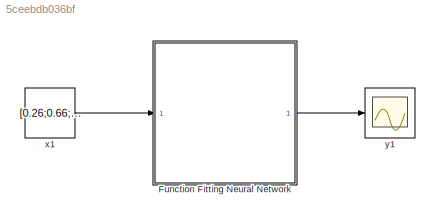
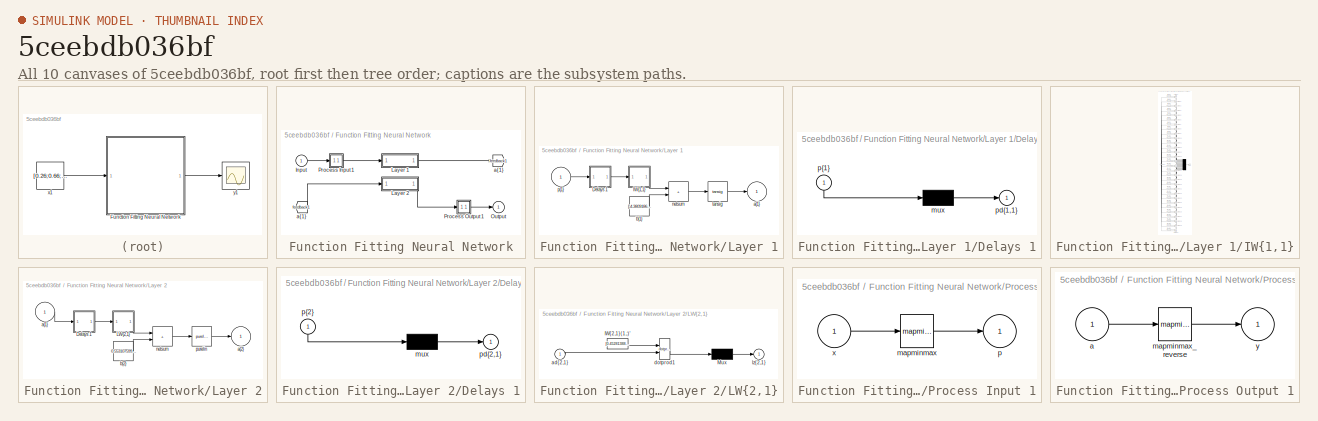
[diagram: thumbnail index - all 10 canvases of the model, root first then tree order]
MODEL slx_5ceebdb036bf
KIND model
CONFIG AbsTol = auto
CONFIG EnableMultiTasking = off
CONFIG FixedStep = auto
CONFIG MaxStep = auto
CONFIG MinStep = auto
CONFIG RelTol = 1e-3
CONFIG SampleTimeConstraint = Unconstrained
CONFIG SolverName = VariableStepAuto
CONFIG StartTime = 0.0
CONFIG StopTime = 10.0
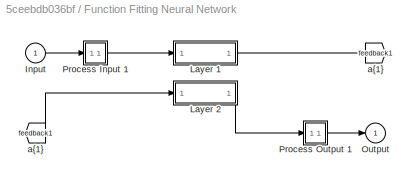
BLOCK [SubSystem] Function Fitting Neural Network
  Ports = [1, 1]
  RequestExecContextInheritance = off
BLOCK [From] Function Fitting Neural Network/ a{1} 
  GotoTag = feedback1
BLOCK [Inport] Function Fitting Neural Network/Input
  PortDimensions = 3
BLOCK [SubSystem] Function Fitting Neural Network/Layer 1
  Ports = [1, 1]
  RequestExecContextInheritance = off
BLOCK [SubSystem] Function Fitting Neural Network/Layer 1/Delays 1
  Ports = [1, 1]
  RequestExecContextInheritance = off
BLOCK [Mux] Function Fitting Neural Network/Layer 1/Delays 1/mux
  Inputs = 1
  Ports = [1, 1]
BLOCK [Outport] Function Fitting Neural Network/Layer 1/Delays 1/pd{1,1}
BLOCK [Inport] Function Fitting Neural Network/Layer 1/Delays 1/p{1}
  NameLocation = left
  PortDimensions = 3
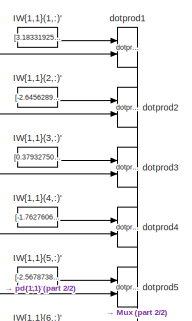
[diagram: Function Fitting Neural Network/Layer 1/IW{1,1} - part 1/2, top center region]
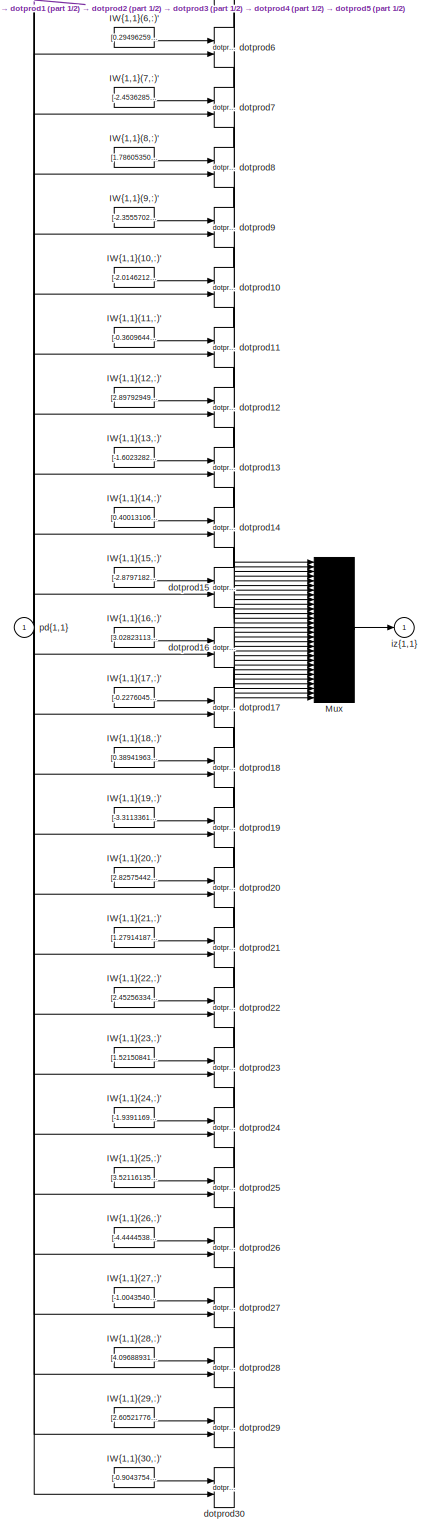
[diagram: Function Fitting Neural Network/Layer 1/IW{1,1} - part 2/2, most of the canvas]
BLOCK [SubSystem] Function Fitting Neural Network/Layer 1/IW{1,1}
  Ports = [1, 1]
  RequestExecContextInheritance = off
BLOCK [Constant] Function Fitting Neural Network/Layer 1/IW{1,1}/IW{1,1}(1,:)'
  Value = [3.183319252630149254201796793495304882526397705078125;2.02476883779157379450452935998328030109405517578125;2.138760647631060773932176743983291089534759521484375]
BLOCK [Constant] Function Fitting Neural Network/Layer 1/IW{1,1}/IW{1,1}(10,:)'
  Value = [-2.01462127030764559521003320696763694286346435546875;0.0095457621005782221368374251824207021854817867279052734375;-3.38871894411982310657549533061683177947998046875]
BLOCK [Constant] Function Fitting Neural Network/Layer 1/IW{1,1}/IW{1,1}(11,:)'
  Value = [-0.360964465436740933323989111158880405128002166748046875;-2.7026091616972944819963231566362082958221435546875;3.4375306867889054984743779641576111316680908203125]
BLOCK [Constant] Function Fitting Neural Network/Layer 1/IW{1,1}/IW{1,1}(12,:)'
  Value = [2.897929493185697591428606756380759179592132568359375;-2.032890759367865118889540099189616739749908447265625;2.182615407780890581790345095214433968067169189453125]
BLOCK [Constant] Function Fitting Neural Network/Layer 1/IW{1,1}/IW{1,1}(13,:)'
  Value = [-1.6023282960621656467736784179578535258769989013671875;3.95243577171039905948646264732815325260162353515625;-1.124269598472244613418524750159122049808502197265625]
BLOCK [Constant] Function Fitting Neural Network/Layer 1/IW{1,1}/IW{1,1}(14,:)'
  Value = [0.400131066573979676803674010443501174449920654296875;0.72942931733353322254487238751607947051525115966796875;4.29080842593420452857344571384601294994354248046875]
BLOCK [Constant] Function Fitting Neural Network/Layer 1/IW{1,1}/IW{1,1}(15,:)'
  Value = [-2.879718209935845152358524501323699951171875;-1.90969679136008085862385996733792126178741455078125;-2.627713581040215018447270267643034458160400390625]
BLOCK [Constant] Function Fitting Neural Network/Layer 1/IW{1,1}/IW{1,1}(16,:)'
  Value = [3.02823113562085222127961969817988574504852294921875;2.85214600407190221886821746011264622211456298828125;0.93724700393019932942451077906298451125621795654296875]
BLOCK [Constant] Function Fitting Neural Network/Layer 1/IW{1,1}/IW{1,1}(17,:)'
  Value = [-0.22760452741545111887688790375250391662120819091796875;3.2366598752231521274325132253579795360565185546875;-2.726554617027201032897210097871720790863037109375]
BLOCK [Constant] Function Fitting Neural Network/Layer 1/IW{1,1}/IW{1,1}(18,:)'
  Value = [0.389419635156639409867551648858352564275264739990234375;1.9395862401214103432067759058554656803607940673828125;3.63745603110358839415994225419126451015472412109375]
BLOCK [Constant] Function Fitting Neural Network/Layer 1/IW{1,1}/IW{1,1}(19,:)'
  Value = [-3.311336159688132330103371714358218014240264892578125;-1.90028943240994951935363133088685572147369384765625;1.2463190722834094348314692979329265654087066650390625]
BLOCK [Constant] Function Fitting Neural Network/Layer 1/IW{1,1}/IW{1,1}(2,:)'
  Value = [-2.64562892638747459983505905256606638431549072265625;2.653195529732885749041315648355521261692047119140625;2.080373360096326340595851434045471251010894775390625]
BLOCK [Constant] Function Fitting Neural Network/Layer 1/IW{1,1}/IW{1,1}(20,:)'
  Value = [2.8257544251746509189615608192980289459228515625;1.8320251534916114355411309588816948235034942626953125;-2.62416036195815305376299875206314027309417724609375]
BLOCK [Constant] Function Fitting Neural Network/Layer 1/IW{1,1}/IW{1,1}(21,:)'
  Value = [1.27914187858392391916595443035475909709930419921875;-3.299854242127086667579760614898987114429473876953125;-3.075869800267284848160898036439903080463409423828125]
BLOCK [Constant] Function Fitting Neural Network/Layer 1/IW{1,1}/IW{1,1}(22,:)'
  Value = [2.452563342661334022665187148959375917911529541015625;-2.45736636405154218465440862928517162799835205078125;-2.250707903522962904929727301350794732570648193359375]
BLOCK [Constant] Function Fitting Neural Network/Layer 1/IW{1,1}/IW{1,1}(23,:)'
  Value = [1.521508413057308217730678734369575977325439453125;2.924552676034335885191239867708645761013031005859375;-2.821396028542975553676797062507830560207366943359375]
BLOCK [Constant] Function Fitting Neural Network/Layer 1/IW{1,1}/IW{1,1}(24,:)'
  Value = [-1.939116971364652552978213861933909356594085693359375;2.23211198920959663638541314867325127124786376953125;2.4859178484788611029898675042204558849334716796875]
BLOCK [Constant] Function Fitting Neural Network/Layer 1/IW{1,1}/IW{1,1}(25,:)'
  Value = [3.52116135442149680301326952758245170116424560546875;0.60629170029297740907026081913500092923641204833984375;2.611513845432870795093549531884491443634033203125]
BLOCK [Constant] Function Fitting Neural Network/Layer 1/IW{1,1}/IW{1,1}(26,:)'
  Value = [-4.44445385262155401306927160476334393024444580078125;0.76035099520075932755247549721389077603816986083984375;0.564752503179883458273025098606012761592864990234375]
BLOCK [Constant] Function Fitting Neural Network/Layer 1/IW{1,1}/IW{1,1}(27,:)'
  Value = [-1.0043540651905111804609305181656964123249053955078125;3.840603726929403105572191634564660489559173583984375;1.810259156230113131158532269182614982128143310546875]
BLOCK [Constant] Function Fitting Neural Network/Layer 1/IW{1,1}/IW{1,1}(28,:)'
  Value = [4.0968893152531276058425646624527871608734130859375;-0.33112468503687109144806299809715710580348968505859375;-0.0921987539809621947650697393328300677239894866943359375]
BLOCK [Constant] Function Fitting Neural Network/Layer 1/IW{1,1}/IW{1,1}(29,:)'
  Value = [2.60521776452447983984939128276892006397247314453125;1.6729136000666908756784323486499488353729248046875;3.076147233706702177613578896853141486644744873046875]
BLOCK [Constant] Function Fitting Neural Network/Layer 1/IW{1,1}/IW{1,1}(3,:)'
  Value = [0.379327505978742818282256621387205086648464202880859375;-3.0592060762700707954309109481982886791229248046875;-2.777378405719444831589726163656450808048248291015625]
BLOCK [Constant] Function Fitting Neural Network/Layer 1/IW{1,1}/IW{1,1}(30,:)'
  Value = [-0.90437545993474366401443376162205822765827178955078125;-3.761439062528570076437972602434456348419189453125;-1.6413800656023809221295550742070190608501434326171875]
BLOCK [Constant] Function Fitting Neural Network/Layer 1/IW{1,1}/IW{1,1}(4,:)'
  Value = [-1.762760686078326255454840065794996917247772216796875;3.93849883389264388000583494431339204311370849609375;-1.1062665875680419702575818519107997417449951171875]
BLOCK [Constant] Function Fitting Neural Network/Layer 1/IW{1,1}/IW{1,1}(5,:)'
  Value = [-2.5678738183342257883623460656963288784027099609375;2.04228663251005304601903844741173088550567626953125;2.7463926284786968068374335416592657566070556640625]
BLOCK [Constant] Function Fitting Neural Network/Layer 1/IW{1,1}/IW{1,1}(6,:)'
  Value = [0.29496259623925258352983291842974722385406494140625;-1.226886928501119466972113514202646911144256591796875;-4.080592857879967283452060655690729618072509765625]
BLOCK [Constant] Function Fitting Neural Network/Layer 1/IW{1,1}/IW{1,1}(7,:)'
  Value = [-2.453628500811010137994117030757479369640350341796875;-2.735688024051533329128460536594502627849578857421875;-2.259476295250915978130024086567573249340057373046875]
BLOCK [Constant] Function Fitting Neural Network/Layer 1/IW{1,1}/IW{1,1}(8,:)'
  Value = [1.7860535000007626837970065025729127228260040283203125;-1.0996127609436825434130469147930853068828582763671875;-3.724979067581600578051848060567863285541534423828125]
BLOCK [Constant] Function Fitting Neural Network/Layer 1/IW{1,1}/IW{1,1}(9,:)'
  Value = [-2.35557029371293946695686827297322452068328857421875;-1.742151269147546255311453933245502412319183349609375;-2.767097792939409384160853733192197978496551513671875]
BLOCK [Mux] Function Fitting Neural Network/Layer 1/IW{1,1}/Mux
  Inputs = 30
  Ports = [30, 1]
BLOCK [Reference] Function Fitting Neural Network/Layer 1/IW{1,1}/dotprod1  REF=neural/Weight Functions/dotprod
  Ports = [2, 1]
  SourceBlock = neural/Weight Functions/dotprod
  SourceProductBaseCode = NN
  SourceType = DOTPROD
BLOCK [Reference] Function Fitting Neural Network/Layer 1/IW{1,1}/dotprod10  REF=neural/Weight Functions/dotprod
  Ports = [2, 1]
  SourceBlock = neural/Weight Functions/dotprod
  SourceProductBaseCode = NN
  SourceType = DOTPROD
BLOCK [Reference] Function Fitting Neural Network/Layer 1/IW{1,1}/dotprod11  REF=neural/Weight Functions/dotprod
  Ports = [2, 1]
  SourceBlock = neural/Weight Functions/dotprod
  SourceProductBaseCode = NN
  SourceType = DOTPROD
BLOCK [Reference] Function Fitting Neural Network/Layer 1/IW{1,1}/dotprod12  REF=neural/Weight Functions/dotprod
  Ports = [2, 1]
  SourceBlock = neural/Weight Functions/dotprod
  SourceProductBaseCode = NN
  SourceType = DOTPROD
BLOCK [Reference] Function Fitting Neural Network/Layer 1/IW{1,1}/dotprod13  REF=neural/Weight Functions/dotprod
  Ports = [2, 1]
  SourceBlock = neural/Weight Functions/dotprod
  SourceProductBaseCode = NN
  SourceType = DOTPROD
BLOCK [Reference] Function Fitting Neural Network/Layer 1/IW{1,1}/dotprod14  REF=neural/Weight Functions/dotprod
  Ports = [2, 1]
  SourceBlock = neural/Weight Functions/dotprod
  SourceProductBaseCode = NN
  SourceType = DOTPROD
BLOCK [Reference] Function Fitting Neural Network/Layer 1/IW{1,1}/dotprod15  REF=neural/Weight Functions/dotprod
  Ports = [2, 1]
  SourceBlock = neural/Weight Functions/dotprod
  SourceProductBaseCode = NN
  SourceType = DOTPROD
BLOCK [Reference] Function Fitting Neural Network/Layer 1/IW{1,1}/dotprod16  REF=neural/Weight Functions/dotprod
  Ports = [2, 1]
  SourceBlock = neural/Weight Functions/dotprod
  SourceProductBaseCode = NN
  SourceType = DOTPROD
BLOCK [Reference] Function Fitting Neural Network/Layer 1/IW{1,1}/dotprod17  REF=neural/Weight Functions/dotprod
  Ports = [2, 1]
  SourceBlock = neural/Weight Functions/dotprod
  SourceProductBaseCode = NN
  SourceType = DOTPROD
BLOCK [Reference] Function Fitting Neural Network/Layer 1/IW{1,1}/dotprod18  REF=neural/Weight Functions/dotprod
  Ports = [2, 1]
  SourceBlock = neural/Weight Functions/dotprod
  SourceProductBaseCode = NN
  SourceType = DOTPROD
BLOCK [Reference] Function Fitting Neural Network/Layer 1/IW{1,1}/dotprod19  REF=neural/Weight Functions/dotprod
  Ports = [2, 1]
  SourceBlock = neural/Weight Functions/dotprod
  SourceProductBaseCode = NN
  SourceType = DOTPROD
BLOCK [Reference] Function Fitting Neural Network/Layer 1/IW{1,1}/dotprod2  REF=neural/Weight Functions/dotprod
  Ports = [2, 1]
  SourceBlock = neural/Weight Functions/dotprod
  SourceProductBaseCode = NN
  SourceType = DOTPROD
BLOCK [Reference] Function Fitting Neural Network/Layer 1/IW{1,1}/dotprod20  REF=neural/Weight Functions/dotprod
  Ports = [2, 1]
  SourceBlock = neural/Weight Functions/dotprod
  SourceProductBaseCode = NN
  SourceType = DOTPROD
BLOCK [Reference] Function Fitting Neural Network/Layer 1/IW{1,1}/dotprod21  REF=neural/Weight Functions/dotprod
  Ports = [2, 1]
  SourceBlock = neural/Weight Functions/dotprod
  SourceProductBaseCode = NN
  SourceType = DOTPROD
BLOCK [Reference] Function Fitting Neural Network/Layer 1/IW{1,1}/dotprod22  REF=neural/Weight Functions/dotprod
  Ports = [2, 1]
  SourceBlock = neural/Weight Functions/dotprod
  SourceProductBaseCode = NN
  SourceType = DOTPROD
BLOCK [Reference] Function Fitting Neural Network/Layer 1/IW{1,1}/dotprod23  REF=neural/Weight Functions/dotprod
  Ports = [2, 1]
  SourceBlock = neural/Weight Functions/dotprod
  SourceProductBaseCode = NN
  SourceType = DOTPROD
BLOCK [Reference] Function Fitting Neural Network/Layer 1/IW{1,1}/dotprod24  REF=neural/Weight Functions/dotprod
  Ports = [2, 1]
  SourceBlock = neural/Weight Functions/dotprod
  SourceProductBaseCode = NN
  SourceType = DOTPROD
BLOCK [Reference] Function Fitting Neural Network/Layer 1/IW{1,1}/dotprod25  REF=neural/Weight Functions/dotprod
  Ports = [2, 1]
  SourceBlock = neural/Weight Functions/dotprod
  SourceProductBaseCode = NN
  SourceType = DOTPROD
BLOCK [Reference] Function Fitting Neural Network/Layer 1/IW{1,1}/dotprod26  REF=neural/Weight Functions/dotprod
  Ports = [2, 1]
  SourceBlock = neural/Weight Functions/dotprod
  SourceProductBaseCode = NN
  SourceType = DOTPROD
BLOCK [Reference] Function Fitting Neural Network/Layer 1/IW{1,1}/dotprod27  REF=neural/Weight Functions/dotprod
  Ports = [2, 1]
  SourceBlock = neural/Weight Functions/dotprod
  SourceProductBaseCode = NN
  SourceType = DOTPROD
BLOCK [Reference] Function Fitting Neural Network/Layer 1/IW{1,1}/dotprod28  REF=neural/Weight Functions/dotprod
  Ports = [2, 1]
  SourceBlock = neural/Weight Functions/dotprod
  SourceProductBaseCode = NN
  SourceType = DOTPROD
BLOCK [Reference] Function Fitting Neural Network/Layer 1/IW{1,1}/dotprod29  REF=neural/Weight Functions/dotprod
  Ports = [2, 1]
  SourceBlock = neural/Weight Functions/dotprod
  SourceProductBaseCode = NN
  SourceType = DOTPROD
BLOCK [Reference] Function Fitting Neural Network/Layer 1/IW{1,1}/dotprod3  REF=neural/Weight Functions/dotprod
  Ports = [2, 1]
  SourceBlock = neural/Weight Functions/dotprod
  SourceProductBaseCode = NN
  SourceType = DOTPROD
BLOCK [Reference] Function Fitting Neural Network/Layer 1/IW{1,1}/dotprod30  REF=neural/Weight Functions/dotprod
  Ports = [2, 1]
  SourceBlock = neural/Weight Functions/dotprod
  SourceProductBaseCode = NN
  SourceType = DOTPROD
BLOCK [Reference] Function Fitting Neural Network/Layer 1/IW{1,1}/dotprod4  REF=neural/Weight Functions/dotprod
  Ports = [2, 1]
  SourceBlock = neural/Weight Functions/dotprod
  SourceProductBaseCode = NN
  SourceType = DOTPROD
BLOCK [Reference] Function Fitting Neural Network/Layer 1/IW{1,1}/dotprod5  REF=neural/Weight Functions/dotprod
  Ports = [2, 1]
  SourceBlock = neural/Weight Functions/dotprod
  SourceProductBaseCode = NN
  SourceType = DOTPROD
BLOCK [Reference] Function Fitting Neural Network/Layer 1/IW{1,1}/dotprod6  REF=neural/Weight Functions/dotprod
  Ports = [2, 1]
  SourceBlock = neural/Weight Functions/dotprod
  SourceProductBaseCode = NN
  SourceType = DOTPROD
BLOCK [Reference] Function Fitting Neural Network/Layer 1/IW{1,1}/dotprod7  REF=neural/Weight Functions/dotprod
  Ports = [2, 1]
  SourceBlock = neural/Weight Functions/dotprod
  SourceProductBaseCode = NN
  SourceType = DOTPROD
BLOCK [Reference] Function Fitting Neural Network/Layer 1/IW{1,1}/dotprod8  REF=neural/Weight Functions/dotprod
  Ports = [2, 1]
  SourceBlock = neural/Weight Functions/dotprod
  SourceProductBaseCode = NN
  SourceType = DOTPROD
BLOCK [Reference] Function Fitting Neural Network/Layer 1/IW{1,1}/dotprod9  REF=neural/Weight Functions/dotprod
  Ports = [2, 1]
  SourceBlock = neural/Weight Functions/dotprod
  SourceProductBaseCode = NN
  SourceType = DOTPROD
BLOCK [Outport] Function Fitting Neural Network/Layer 1/IW{1,1}/iz{1,1}
BLOCK [Inport] Function Fitting Neural Network/Layer 1/IW{1,1}/pd{1,1}
  PortDimensions = 3
BLOCK [Outport] Function Fitting Neural Network/Layer 1/a{1}
  InitialOutput = [0;0;0;0;0;0;0;0;0;0;0;0;0;0;0;0;0;0;0;0;0;0;0;0;0;0;0;0;0;0]
BLOCK [Constant] Function Fitting Neural Network/Layer 1/b{1}
  Value = [-4.3809186067144079146373769617639482021331787109375;3.866960658982020238028098901850171387195587158203125;-4.05897386369603196953903534449636936187744140625;3.059794105015542609038448063074611127376556396484375;3.207866738221631930372268470819108188152313232421875;-2.81086679939786421300595975480973720550537109375;2.65414984714924084840959039865992963314056396484375;-2.41016156925992852677609334...<+1230ch>
BLOCK [Sum] Function Fitting Neural Network/Layer 1/netsum
  IconShape = rectangular
  InputSameDT = on
  Inputs = 2
  OutDataTypeStr = Inherit: Same as first input
  Ports = [2, 1]
  SaturateOnIntegerOverflow = on
BLOCK [Inport] Function Fitting Neural Network/Layer 1/p{1}
  PortDimensions = 3
BLOCK [Reference] Function Fitting Neural Network/Layer 1/tansig  REF=neural/Transfer Functions/tansig
  Ports = [1, 1]
  SourceBlock = neural/Transfer Functions/tansig
  SourceProductBaseCode = NN
  SourceType = TANSIG
BLOCK [SubSystem] Function Fitting Neural Network/Layer 2
  Ports = [1, 1]
  RequestExecContextInheritance = off
BLOCK [SubSystem] Function Fitting Neural Network/Layer 2/Delays 1
  Ports = [1, 1]
  RequestExecContextInheritance = off
BLOCK [Mux] Function Fitting Neural Network/Layer 2/Delays 1/mux
  Inputs = 1
  Ports = [1, 1]
BLOCK [Outport] Function Fitting Neural Network/Layer 2/Delays 1/pd{2,1}
BLOCK [Inport] Function Fitting Neural Network/Layer 2/Delays 1/p{2}
  NameLocation = left
  PortDimensions = 30
BLOCK [SubSystem] Function Fitting Neural Network/Layer 2/LW{2,1}
  Ports = [1, 1]
  RequestExecContextInheritance = off
BLOCK [Constant] Function Fitting Neural Network/Layer 2/LW{2,1}/IW{2,1}(1,:)'
  Value = [0.452813884755025208850298668039613403379917144775390625;-0.05409507937050879455842533616305445320904254913330078125;0.10386570878845165222248425607176613993942737579345703125;-0.07835726527121854301238812468000105582177639007568359375;-0.009995541487295901694754007849041954614222049713134765625;0.1003244676483484310036686792955151759088039398193359375;-0.11365015816410427296201390845453715883195...<+1346ch>
BLOCK [Mux] Function Fitting Neural Network/Layer 2/LW{2,1}/Mux
  Inputs = 1
  Ports = [1, 1]
BLOCK [Inport] Function Fitting Neural Network/Layer 2/LW{2,1}/ad{2,1}
  PortDimensions = 30
BLOCK [Reference] Function Fitting Neural Network/Layer 2/LW{2,1}/dotprod1  REF=neural/Weight Functions/dotprod
  Ports = [2, 1]
  SourceBlock = neural/Weight Functions/dotprod
  SourceProductBaseCode = NN
  SourceType = DOTPROD
BLOCK [Outport] Function Fitting Neural Network/Layer 2/LW{2,1}/lz{2,1}
BLOCK [Inport] Function Fitting Neural Network/Layer 2/a{1} 
  PortDimensions = 30
BLOCK [Outport] Function Fitting Neural Network/Layer 2/a{2}
  InitialOutput = 0
BLOCK [Constant] Function Fitting Neural Network/Layer 2/b{2}
  Value = 0.5531075990547169585198616914567537605762481689453125
BLOCK [Sum] Function Fitting Neural Network/Layer 2/netsum
  IconShape = rectangular
  InputSameDT = on
  Inputs = 2
  OutDataTypeStr = Inherit: Same as first input
  Ports = [2, 1]
  SaturateOnIntegerOverflow = on
BLOCK [Reference] Function Fitting Neural Network/Layer 2/purelin  REF=neural/Transfer Functions/purelin
  Ports = [1, 1]
  SourceBlock = neural/Transfer Functions/purelin
  SourceProductBaseCode = NN
  SourceType = PURELIN
BLOCK [Outport] Function Fitting Neural Network/Output
  InitialOutput = 0
BLOCK [SubSystem] Function Fitting Neural Network/Process Input 1
  Ports = [1, 1]
  RequestExecContextInheritance = off
BLOCK [Reference] Function Fitting Neural Network/Process Input 1/mapminmax  REF=neural/Processing Functions/mapminmax
  Ports = [1, 1]
  SourceBlock = neural/Processing Functions/mapminmax
  SourceProductBaseCode = NN
  SourceType = MAPMINMAX Preprocess
BLOCK [Outport] Function Fitting Neural Network/Process Input 1/p
  PortDimensions = 3
BLOCK [Inport] Function Fitting Neural Network/Process Input 1/x
  PortDimensions = 3
BLOCK [SubSystem] Function Fitting Neural Network/Process Output 1
  Ports = [1, 1]
  RequestExecContextInheritance = off
BLOCK [Inport] Function Fitting Neural Network/Process Output 1/a
  PortDimensions = 1
BLOCK [Reference] Function Fitting Neural Network/Process Output 1/mapminmax_reverse  REF=neural/Processing Functions/mapminmax_reverse
  Ports = [1, 1]
  SourceBlock = neural/Processing Functions/mapminmax_reverse
  SourceProductBaseCode = NN
  SourceType = MAPMINMAX Reverse Process
BLOCK [Outport] Function Fitting Neural Network/Process Output 1/y
  PortDimensions = 1
BLOCK [Goto] Function Fitting Neural Network/a{1}
  GotoTag = feedback1
BLOCK [Constant] x1
  SampleTime = 1
  Value = [0.26;0.66;0.47]
BLOCK [Scope] y1
  Floating = off
  NumInputPorts = 1
  Ports = [1]
LINE Function Fitting Neural Network/ a{1} :1 -> Function Fitting Neural Network/Layer 2:1
LINE Function Fitting Neural Network/Input:1 -> Function Fitting Neural Network/Process Input 1:1
LINE Function Fitting Neural Network/Layer 1/Delays 1/mux:1 -> Function Fitting Neural Network/Layer 1/Delays 1/pd{1,1}:1
LINE Function Fitting Neural Network/Layer 1/Delays 1/p{1}:1 -> Function Fitting Neural Network/Layer 1/Delays 1/mux:1
LINE Function Fitting Neural Network/Layer 1/Delays 1:1 -> Function Fitting Neural Network/Layer 1/IW{1,1}:1
LINE Function Fitting Neural Network/Layer 1/IW{1,1}/IW{1,1}(1,:)':1 -> Function Fitting Neural Network/Layer 1/IW{1,1}/dotprod1:1
LINE Function Fitting Neural Network/Layer 1/IW{1,1}/IW{1,1}(10,:)':1 -> Function Fitting Neural Network/Layer 1/IW{1,1}/dotprod10:1
LINE Function Fitting Neural Network/Layer 1/IW{1,1}/IW{1,1}(11,:)':1 -> Function Fitting Neural Network/Layer 1/IW{1,1}/dotprod11:1
LINE Function Fitting Neural Network/Layer 1/IW{1,1}/IW{1,1}(12,:)':1 -> Function Fitting Neural Network/Layer 1/IW{1,1}/dotprod12:1
LINE Function Fitting Neural Network/Layer 1/IW{1,1}/IW{1,1}(13,:)':1 -> Function Fitting Neural Network/Layer 1/IW{1,1}/dotprod13:1
LINE Function Fitting Neural Network/Layer 1/IW{1,1}/IW{1,1}(14,:)':1 -> Function Fitting Neural Network/Layer 1/IW{1,1}/dotprod14:1
LINE Function Fitting Neural Network/Layer 1/IW{1,1}/IW{1,1}(15,:)':1 -> Function Fitting Neural Network/Layer 1/IW{1,1}/dotprod15:1
LINE Function Fitting Neural Network/Layer 1/IW{1,1}/IW{1,1}(16,:)':1 -> Function Fitting Neural Network/Layer 1/IW{1,1}/dotprod16:1
LINE Function Fitting Neural Network/Layer 1/IW{1,1}/IW{1,1}(17,:)':1 -> Function Fitting Neural Network/Layer 1/IW{1,1}/dotprod17:1
LINE Function Fitting Neural Network/Layer 1/IW{1,1}/IW{1,1}(18,:)':1 -> Function Fitting Neural Network/Layer 1/IW{1,1}/dotprod18:1
LINE Function Fitting Neural Network/Layer 1/IW{1,1}/IW{1,1}(19,:)':1 -> Function Fitting Neural Network/Layer 1/IW{1,1}/dotprod19:1
LINE Function Fitting Neural Network/Layer 1/IW{1,1}/IW{1,1}(2,:)':1 -> Function Fitting Neural Network/Layer 1/IW{1,1}/dotprod2:1
LINE Function Fitting Neural Network/Layer 1/IW{1,1}/IW{1,1}(20,:)':1 -> Function Fitting Neural Network/Layer 1/IW{1,1}/dotprod20:1
LINE Function Fitting Neural Network/Layer 1/IW{1,1}/IW{1,1}(21,:)':1 -> Function Fitting Neural Network/Layer 1/IW{1,1}/dotprod21:1
LINE Function Fitting Neural Network/Layer 1/IW{1,1}/IW{1,1}(22,:)':1 -> Function Fitting Neural Network/Layer 1/IW{1,1}/dotprod22:1
LINE Function Fitting Neural Network/Layer 1/IW{1,1}/IW{1,1}(23,:)':1 -> Function Fitting Neural Network/Layer 1/IW{1,1}/dotprod23:1
LINE Function Fitting Neural Network/Layer 1/IW{1,1}/IW{1,1}(24,:)':1 -> Function Fitting Neural Network/Layer 1/IW{1,1}/dotprod24:1
LINE Function Fitting Neural Network/Layer 1/IW{1,1}/IW{1,1}(25,:)':1 -> Function Fitting Neural Network/Layer 1/IW{1,1}/dotprod25:1
LINE Function Fitting Neural Network/Layer 1/IW{1,1}/IW{1,1}(26,:)':1 -> Function Fitting Neural Network/Layer 1/IW{1,1}/dotprod26:1
LINE Function Fitting Neural Network/Layer 1/IW{1,1}/IW{1,1}(27,:)':1 -> Function Fitting Neural Network/Layer 1/IW{1,1}/dotprod27:1
LINE Function Fitting Neural Network/Layer 1/IW{1,1}/IW{1,1}(28,:)':1 -> Function Fitting Neural Network/Layer 1/IW{1,1}/dotprod28:1
LINE Function Fitting Neural Network/Layer 1/IW{1,1}/IW{1,1}(29,:)':1 -> Function Fitting Neural Network/Layer 1/IW{1,1}/dotprod29:1
LINE Function Fitting Neural Network/Layer 1/IW{1,1}/IW{1,1}(3,:)':1 -> Function Fitting Neural Network/Layer 1/IW{1,1}/dotprod3:1
LINE Function Fitting Neural Network/Layer 1/IW{1,1}/IW{1,1}(30,:)':1 -> Function Fitting Neural Network/Layer 1/IW{1,1}/dotprod30:1
LINE Function Fitting Neural Network/Layer 1/IW{1,1}/IW{1,1}(4,:)':1 -> Function Fitting Neural Network/Layer 1/IW{1,1}/dotprod4:1
LINE Function Fitting Neural Network/Layer 1/IW{1,1}/IW{1,1}(5,:)':1 -> Function Fitting Neural Network/Layer 1/IW{1,1}/dotprod5:1
LINE Function Fitting Neural Network/Layer 1/IW{1,1}/IW{1,1}(6,:)':1 -> Function Fitting Neural Network/Layer 1/IW{1,1}/dotprod6:1
LINE Function Fitting Neural Network/Layer 1/IW{1,1}/IW{1,1}(7,:)':1 -> Function Fitting Neural Network/Layer 1/IW{1,1}/dotprod7:1
LINE Function Fitting Neural Network/Layer 1/IW{1,1}/IW{1,1}(8,:)':1 -> Function Fitting Neural Network/Layer 1/IW{1,1}/dotprod8:1
LINE Function Fitting Neural Network/Layer 1/IW{1,1}/IW{1,1}(9,:)':1 -> Function Fitting Neural Network/Layer 1/IW{1,1}/dotprod9:1
LINE Function Fitting Neural Network/Layer 1/IW{1,1}/Mux:1 -> Function Fitting Neural Network/Layer 1/IW{1,1}/iz{1,1}:1
LINE Function Fitting Neural Network/Layer 1/IW{1,1}/dotprod10:1 -> Function Fitting Neural Network/Layer 1/IW{1,1}/Mux:10
LINE Function Fitting Neural Network/Layer 1/IW{1,1}/dotprod11:1 -> Function Fitting Neural Network/Layer 1/IW{1,1}/Mux:11
LINE Function Fitting Neural Network/Layer 1/IW{1,1}/dotprod12:1 -> Function Fitting Neural Network/Layer 1/IW{1,1}/Mux:12
LINE Function Fitting Neural Network/Layer 1/IW{1,1}/dotprod13:1 -> Function Fitting Neural Network/Layer 1/IW{1,1}/Mux:13
LINE Function Fitting Neural Network/Layer 1/IW{1,1}/dotprod14:1 -> Function Fitting Neural Network/Layer 1/IW{1,1}/Mux:14
LINE Function Fitting Neural Network/Layer 1/IW{1,1}/dotprod15:1 -> Function Fitting Neural Network/Layer 1/IW{1,1}/Mux:15
LINE Function Fitting Neural Network/Layer 1/IW{1,1}/dotprod16:1 -> Function Fitting Neural Network/Layer 1/IW{1,1}/Mux:16
LINE Function Fitting Neural Network/Layer 1/IW{1,1}/dotprod17:1 -> Function Fitting Neural Network/Layer 1/IW{1,1}/Mux:17
LINE Function Fitting Neural Network/Layer 1/IW{1,1}/dotprod18:1 -> Function Fitting Neural Network/Layer 1/IW{1,1}/Mux:18
LINE Function Fitting Neural Network/Layer 1/IW{1,1}/dotprod19:1 -> Function Fitting Neural Network/Layer 1/IW{1,1}/Mux:19
LINE Function Fitting Neural Network/Layer 1/IW{1,1}/dotprod1:1 -> Function Fitting Neural Network/Layer 1/IW{1,1}/Mux:1
LINE Function Fitting Neural Network/Layer 1/IW{1,1}/dotprod20:1 -> Function Fitting Neural Network/Layer 1/IW{1,1}/Mux:20
LINE Function Fitting Neural Network/Layer 1/IW{1,1}/dotprod21:1 -> Function Fitting Neural Network/Layer 1/IW{1,1}/Mux:21
LINE Function Fitting Neural Network/Layer 1/IW{1,1}/dotprod22:1 -> Function Fitting Neural Network/Layer 1/IW{1,1}/Mux:22
LINE Function Fitting Neural Network/Layer 1/IW{1,1}/dotprod23:1 -> Function Fitting Neural Network/Layer 1/IW{1,1}/Mux:23
LINE Function Fitting Neural Network/Layer 1/IW{1,1}/dotprod24:1 -> Function Fitting Neural Network/Layer 1/IW{1,1}/Mux:24
LINE Function Fitting Neural Network/Layer 1/IW{1,1}/dotprod25:1 -> Function Fitting Neural Network/Layer 1/IW{1,1}/Mux:25
LINE Function Fitting Neural Network/Layer 1/IW{1,1}/dotprod26:1 -> Function Fitting Neural Network/Layer 1/IW{1,1}/Mux:26
LINE Function Fitting Neural Network/Layer 1/IW{1,1}/dotprod27:1 -> Function Fitting Neural Network/Layer 1/IW{1,1}/Mux:27
LINE Function Fitting Neural Network/Layer 1/IW{1,1}/dotprod28:1 -> Function Fitting Neural Network/Layer 1/IW{1,1}/Mux:28
LINE Function Fitting Neural Network/Layer 1/IW{1,1}/dotprod29:1 -> Function Fitting Neural Network/Layer 1/IW{1,1}/Mux:29
LINE Function Fitting Neural Network/Layer 1/IW{1,1}/dotprod2:1 -> Function Fitting Neural Network/Layer 1/IW{1,1}/Mux:2
LINE Function Fitting Neural Network/Layer 1/IW{1,1}/dotprod30:1 -> Function Fitting Neural Network/Layer 1/IW{1,1}/Mux:30
LINE Function Fitting Neural Network/Layer 1/IW{1,1}/dotprod3:1 -> Function Fitting Neural Network/Layer 1/IW{1,1}/Mux:3
LINE Function Fitting Neural Network/Layer 1/IW{1,1}/dotprod4:1 -> Function Fitting Neural Network/Layer 1/IW{1,1}/Mux:4
LINE Function Fitting Neural Network/Layer 1/IW{1,1}/dotprod5:1 -> Function Fitting Neural Network/Layer 1/IW{1,1}/Mux:5
LINE Function Fitting Neural Network/Layer 1/IW{1,1}/dotprod6:1 -> Function Fitting Neural Network/Layer 1/IW{1,1}/Mux:6
LINE Function Fitting Neural Network/Layer 1/IW{1,1}/dotprod7:1 -> Function Fitting Neural Network/Layer 1/IW{1,1}/Mux:7
LINE Function Fitting Neural Network/Layer 1/IW{1,1}/dotprod8:1 -> Function Fitting Neural Network/Layer 1/IW{1,1}/Mux:8
LINE Function Fitting Neural Network/Layer 1/IW{1,1}/dotprod9:1 -> Function Fitting Neural Network/Layer 1/IW{1,1}/Mux:9
NET Function Fitting Neural Network/Layer 1/IW{1,1}/pd{1,1}:1 -> Function Fitting Neural Network/Layer 1/IW{1,1}/dotprod10:2, Function Fitting Neural Network/Layer 1/IW{1,1}/dotprod11:2, Function Fitting Neural Network/Layer 1/IW{1,1}/dotprod12:2, Function Fitting Neural Network/Layer 1/IW{1,1}/dotprod13:2, Function Fitting Neural Network/Layer 1/IW{1,1}/dotprod14:2, Function Fitting Neural Network/Layer 1/IW{1,1}/dotprod15:2, Function Fitting Neural Network/Layer 1/IW{1,1}/dotprod16:2, Function Fitting Neural Network/Layer 1/IW{1,1}/dotprod17:2, Function Fitting Neural Network/Layer 1/IW{1,1}/dotprod18:2, Function Fitting Neural Network/Layer 1/IW{1,1}/dotprod19:2, Function Fitting Neural Network/Layer 1/IW{1,1}/dotprod1:2, Function Fitting Neural Network/Layer 1/IW{1,1}/dotprod20:2, Function Fitting Neural Network/Layer 1/IW{1,1}/dotprod21:2, Function Fitting Neural Network/Layer 1/IW{1,1}/dotprod22:2, Function Fitting Neural Network/Layer 1/IW{1,1}/dotprod23:2, Function Fitting Neural Network/Layer 1/IW{1,1}/dotprod24:2, Function Fitting Neural Network/Layer 1/IW{1,1}/dotprod25:2, Function Fitting Neural Network/Layer 1/IW{1,1}/dotprod26:2, Function Fitting Neural Network/Layer 1/IW{1,1}/dotprod27:2, Function Fitting Neural Network/Layer 1/IW{1,1}/dotprod28:2, Function Fitting Neural Network/Layer 1/IW{1,1}/dotprod29:2, Function Fitting Neural Network/Layer 1/IW{1,1}/dotprod2:2, Function Fitting Neural Network/Layer 1/IW{1,1}/dotprod30:2, Function Fitting Neural Network/Layer 1/IW{1,1}/dotprod3:2, Function Fitting Neural Network/Layer 1/IW{1,1}/dotprod4:2, Function Fitting Neural Network/Layer 1/IW{1,1}/dotprod5:2, Function Fitting Neural Network/Layer 1/IW{1,1}/dotprod6:2, Function Fitting Neural Network/Layer 1/IW{1,1}/dotprod7:2, Function Fitting Neural Network/Layer 1/IW{1,1}/dotprod8:2, Function Fitting Neural Network/Layer 1/IW{1,1}/dotprod9:2
LINE Function Fitting Neural Network/Layer 1/IW{1,1}:1 -> Function Fitting Neural Network/Layer 1/netsum:1
LINE Function Fitting Neural Network/Layer 1/b{1}:1 -> Function Fitting Neural Network/Layer 1/netsum:2
LINE Function Fitting Neural Network/Layer 1/netsum:1 -> Function Fitting Neural Network/Layer 1/tansig:1
LINE Function Fitting Neural Network/Layer 1/p{1}:1 -> Function Fitting Neural Network/Layer 1/Delays 1:1
LINE Function Fitting Neural Network/Layer 1/tansig:1 -> Function Fitting Neural Network/Layer 1/a{1}:1
LINE Function Fitting Neural Network/Layer 1:1 -> Function Fitting Neural Network/a{1}:1
LINE Function Fitting Neural Network/Layer 2/Delays 1/mux:1 -> Function Fitting Neural Network/Layer 2/Delays 1/pd{2,1}:1
LINE Function Fitting Neural Network/Layer 2/Delays 1/p{2}:1 -> Function Fitting Neural Network/Layer 2/Delays 1/mux:1
LINE Function Fitting Neural Network/Layer 2/Delays 1:1 -> Function Fitting Neural Network/Layer 2/LW{2,1}:1
LINE Function Fitting Neural Network/Layer 2/LW{2,1}/IW{2,1}(1,:)':1 -> Function Fitting Neural Network/Layer 2/LW{2,1}/dotprod1:1
LINE Function Fitting Neural Network/Layer 2/LW{2,1}/Mux:1 -> Function Fitting Neural Network/Layer 2/LW{2,1}/lz{2,1}:1
LINE Function Fitting Neural Network/Layer 2/LW{2,1}/ad{2,1}:1 -> Function Fitting Neural Network/Layer 2/LW{2,1}/dotprod1:2
LINE Function Fitting Neural Network/Layer 2/LW{2,1}/dotprod1:1 -> Function Fitting Neural Network/Layer 2/LW{2,1}/Mux:1
LINE Function Fitting Neural Network/Layer 2/LW{2,1}:1 -> Function Fitting Neural Network/Layer 2/netsum:1
LINE Function Fitting Neural Network/Layer 2/a{1} :1 -> Function Fitting Neural Network/Layer 2/Delays 1:1
LINE Function Fitting Neural Network/Layer 2/b{2}:1 -> Function Fitting Neural Network/Layer 2/netsum:2
LINE Function Fitting Neural Network/Layer 2/netsum:1 -> Function Fitting Neural Network/Layer 2/purelin:1
LINE Function Fitting Neural Network/Layer 2/purelin:1 -> Function Fitting Neural Network/Layer 2/a{2}:1
LINE Function Fitting Neural Network/Layer 2:1 -> Function Fitting Neural Network/Process Output 1:1
LINE Function Fitting Neural Network/Process Input 1/mapminmax:1 -> Function Fitting Neural Network/Process Input 1/p:1
LINE Function Fitting Neural Network/Process Input 1/x:1 -> Function Fitting Neural Network/Process Input 1/mapminmax:1
LINE Function Fitting Neural Network/Process Input 1:1 -> Function Fitting Neural Network/Layer 1:1
LINE Function Fitting Neural Network/Process Output 1/a:1 -> Function Fitting Neural Network/Process Output 1/mapminmax_reverse:1
LINE Function Fitting Neural Network/Process Output 1/mapminmax_reverse:1 -> Function Fitting Neural Network/Process Output 1/y:1
LINE Function Fitting Neural Network/Process Output 1:1 -> Function Fitting Neural Network/Output:1
LINE Function Fitting Neural Network:1 -> y1:1
LINE x1:1 -> Function Fitting Neural Network:1
note: NET lines group one-source signal fan-out (src -> all destinations, sorted); 1:1 wires keep LINE
